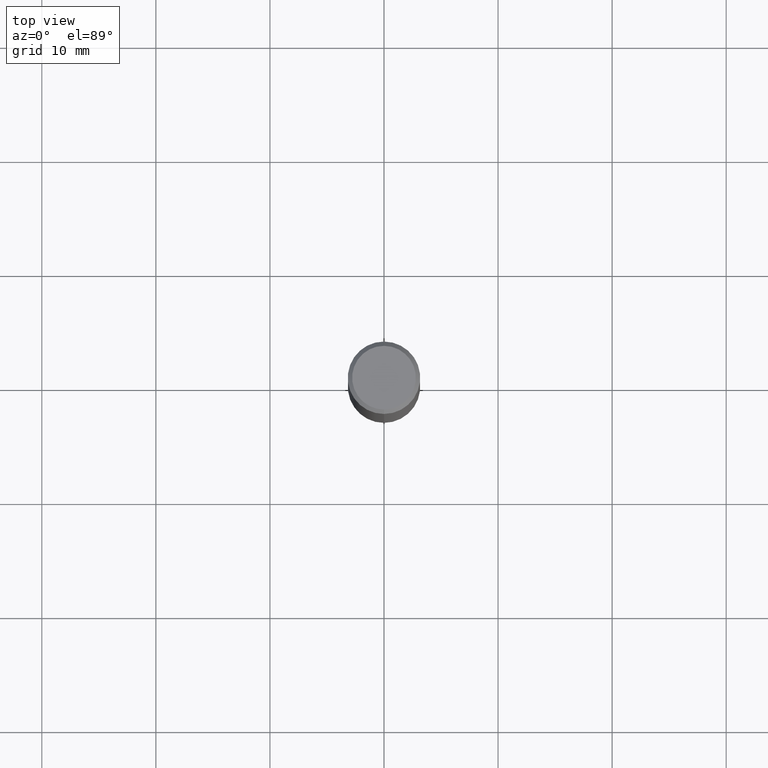
[diagram: clean part render]
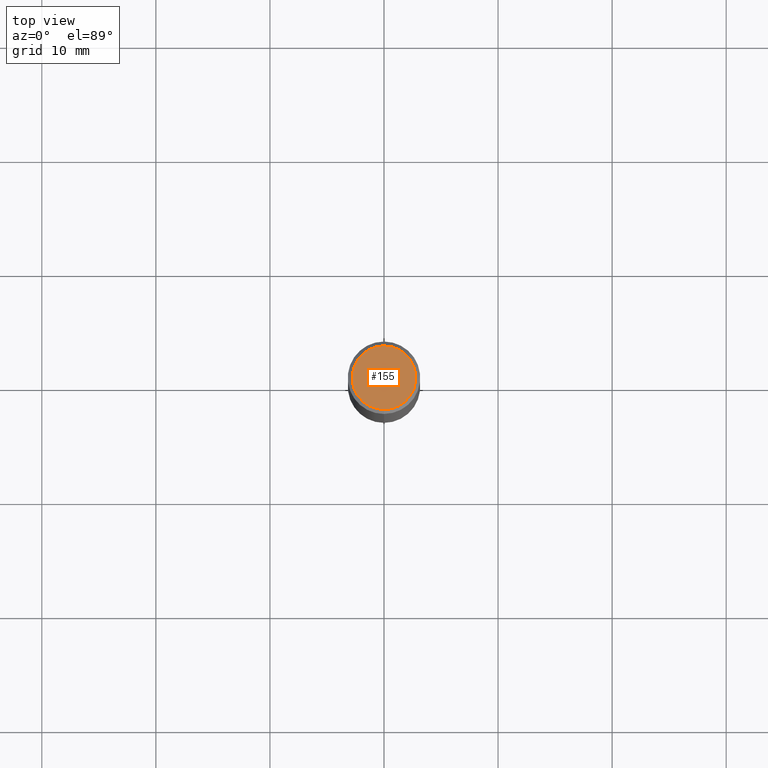
[diagram: same view with one face highlighted and labeled with its STEP entity id]
A machine part, top view. The second image highlights one B-rep face of the part: STEP entity #155.
In plain terms, the highlighted planar face has unit normal (0, -0, -1).
Its self-contained STEP definition (entity closure, byte-faithful):
#6 = AXIS2_PLACEMENT_3D ( 'NONE', #36, #240, #394 ) ;
#16 = EDGE_LOOP ( 'NONE', ( #81, #329 ) ) ;
#18 = PLANE ( 'NONE',  #150 ) ;
#24 = AXIS2_PLACEMENT_3D ( 'NONE', #258, #336, #454 ) ;
#36 = CARTESIAN_POINT ( 'NONE',  ( -1.856216302434962470E-45, 2.650576370488182261E-31, 7.590991037995984833E-17 ) ) ;
#48 = EDGE_CURVE ( 'NONE', #174, #491, #271, .T. ) ;
#68 = DIRECTION ( 'NONE',  ( 2.445288491507693556E-29, -3.491739559724117490E-15, -1.000000000000000000 ) ) ;
#81 = ORIENTED_EDGE ( 'NONE', *, *, #242, .T. ) ;
#146 = CIRCLE ( 'NONE', #6, 0.1100000000000000283 ) ;
#147 = CARTESIAN_POINT ( 'NONE',  ( 7.681258945454894762E-16, 0.1100000000000000283, -3.461363963796731015E-16 ) ) ;
#150 = AXIS2_PLACEMENT_3D ( 'NONE', #147, #68, #343 ) ;
#155 = ADVANCED_FACE ( 'NONE', ( #415 ), #18, .F. ) ;
#174 = VERTEX_POINT ( 'NONE', #463 ) ;
#240 = DIRECTION ( 'NONE',  ( -2.445288491507693836E-29, 3.491739559724117490E-15, 1.000000000000000000 ) ) ;
#242 = EDGE_CURVE ( 'NONE', #491, #174, #146, .T. ) ;
#258 = CARTESIAN_POINT ( 'NONE',  ( -1.856216302434962470E-45, 2.650576370488182261E-31, 7.590991037995984833E-17 ) ) ;
#262 = CARTESIAN_POINT ( 'NONE',  ( 8.204981146281365554E-16, 0.1100000000000000283, -3.081814411896931095E-16 ) ) ;
#271 = CIRCLE ( 'NONE', #24, 0.1100000000000000283 ) ;
#329 = ORIENTED_EDGE ( 'NONE', *, *, #48, .T. ) ;
#336 = DIRECTION ( 'NONE',  ( -2.445288491507693836E-29, 3.491739559724117490E-15, 1.000000000000000000 ) ) ;
#343 = DIRECTION ( 'NONE',  ( 6.982962677686265922E-15, 1.000000000000000000, -3.491739559724117490E-15 ) ) ;
#394 = DIRECTION ( 'NONE',  ( -6.982962677686265922E-15, -1.000000000000000000, 3.491739559724117490E-15 ) ) ;
#415 = FACE_OUTER_BOUND ( 'NONE', #16, .T. ) ;
#454 = DIRECTION ( 'NONE',  ( -6.982962677686265922E-15, -1.000000000000000000, 3.491739559724117490E-15 ) ) ;
#463 = CARTESIAN_POINT ( 'NONE',  ( -8.061085147381547495E-16, -0.1100000000000000283, 4.600012619496127815E-16 ) ) ;
#491 = VERTEX_POINT ( 'NONE', #262 ) ;